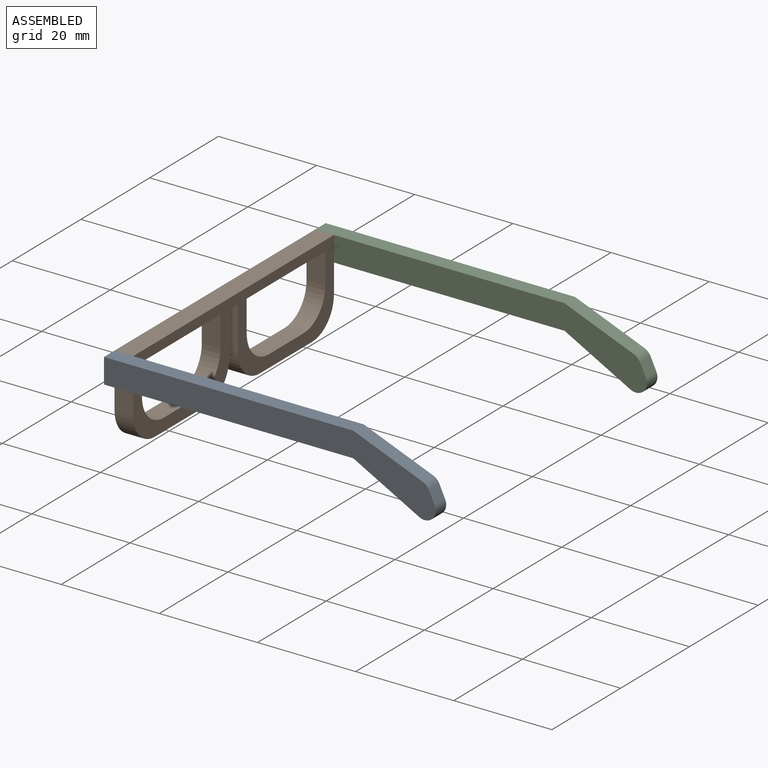
[diagram: assembled view]
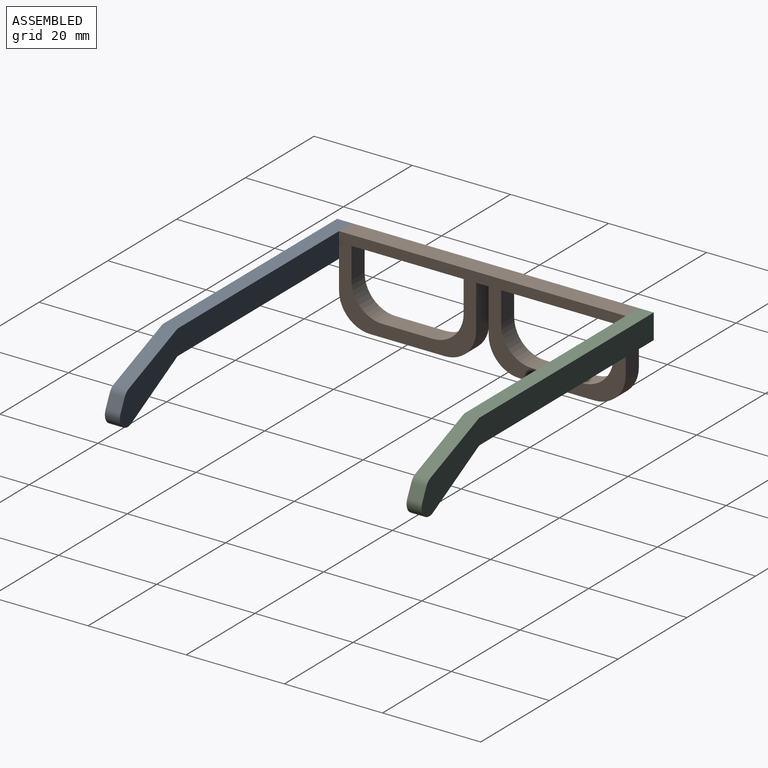
[diagram: assembled view, second angle]
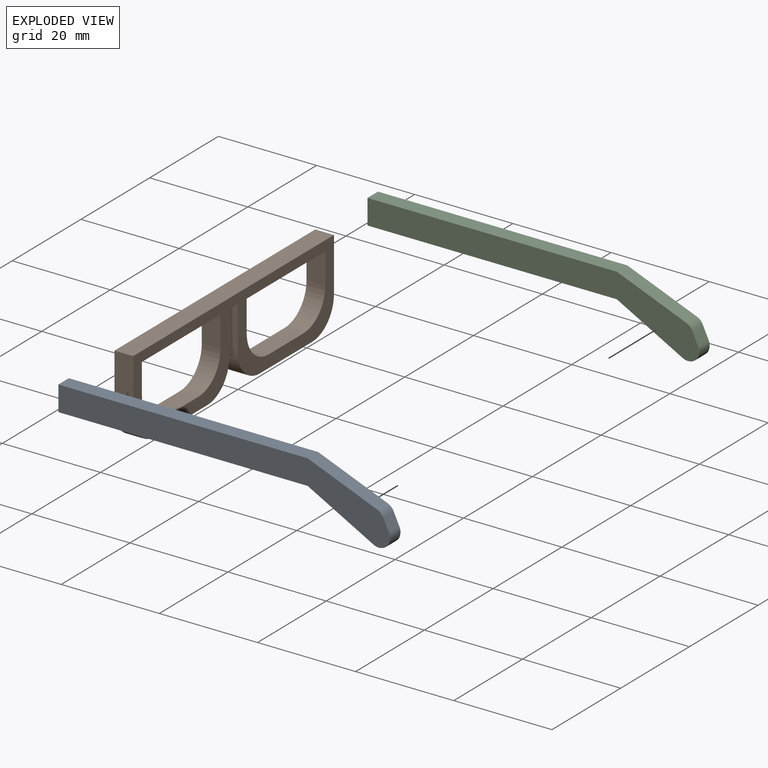
[diagram: exploded view]
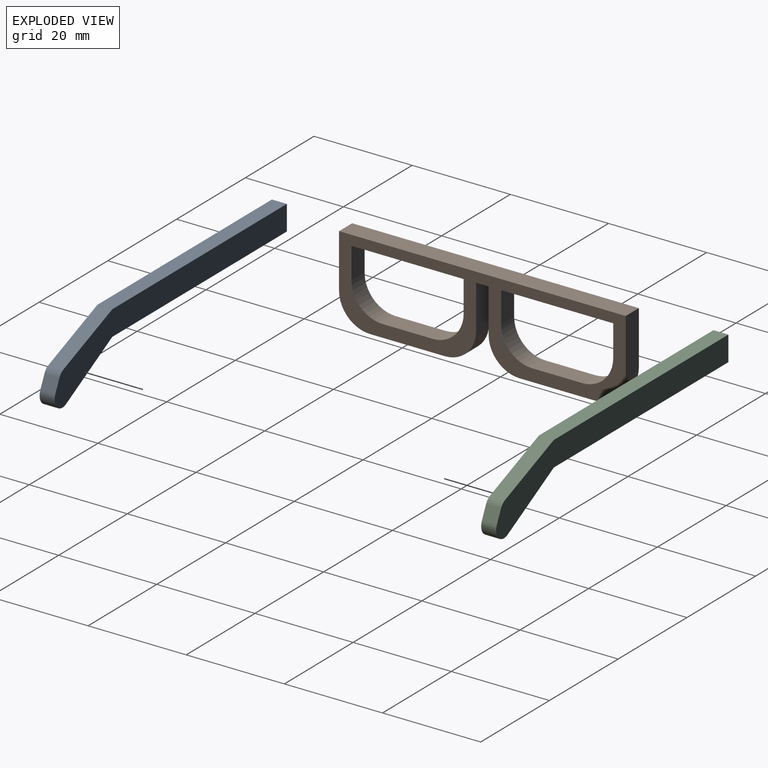
[diagram: exploded view, second angle]
ASSEMBLY  parts=3 mates=2
PART A: 10 faces, bbox 67.6x3x12.6 mm
  f0: plane 5.08x3.05mm, normal (-1,0,0), area 15.5mm2, adj f1,f7,f8,f9
  f1: plane 50.8x3.05mm, normal (0,0,-1), area 154.8mm2, adj f0,f2,f8,f9
  f2: plane 13.42x7.22mm, normal (-0.47,0,-0.88), area 46.5mm2, adj f1,f3,f8,f9
  f3: cylinder r=2.29mm len=3.37mm, axis (0,1,0), area 17.4mm2, adj f2,f4,f8,f9
  f4: plane 3.05x2.53mm, normal (0.91,0,0.42), area 8.5mm2, adj f3,f5,f8,f9
  f5: cylinder r=2.29mm len=3.05mm, axis (0,1,0), area 5.3mm2, adj f4,f6,f8,f9
  f6: plane 14.16x5.63mm, normal (0.37,0,0.93), area 46.5mm2, adj f5,f7,f8,f9
  f7: plane 50.8x3.05mm, normal (0,0,1), area 154.8mm2, adj f0,f6,f8,f9
  f8: plane 67.59x12.58mm, normal (0,-1,0), area 356.9mm2, adj f0,f1,f2,f3,f4,f5,f6,f7
  f9: plane 67.59x12.58mm, normal (0,1,0), area 356.9mm2, adj f0,f1,f2,f3,f4,f5,f6,f7
PART B: 26 faces, bbox 58.4x3.8x17.3 mm
  f0: plane 6.35x3.81mm, normal (1,0,0), area 24.2mm2, adj f1,f23,f24,f25
  f1: plane 22.86x3.81mm, normal (0,0,-1), area 87.1mm2, adj f0,f2,f24,f25
  f2: plane 6.35x3.81mm, normal (-1,0,0), area 24.2mm2, adj f1,f3,f24,f25
  f3: cylinder r=6.35mm len=6.35mm, axis (0,1,0), area 38mm2, adj f2,f4,f24,f25
  f4: plane 10.16x3.81mm, normal (0,0,1), area 38.7mm2, adj f3,f23,f24,f25
  f5: plane 22.86x3.81mm, normal (0,0,-1), area 87.1mm2, adj f6,f21,f24,f25
  f6: plane 6.35x3.81mm, normal (-1,0,0), area 24.2mm2, adj f5,f7,f24,f25
  f7: cylinder r=6.35mm len=6.35mm, axis (0,1,0), area 38mm2, adj f6,f8,f24,f25
  f8: plane 10.16x3.81mm, normal (0,0,1), area 38.7mm2, adj f7,f9,f24,f25
  f9: cylinder r=6.35mm len=6.35mm, axis (0,1,0), area 38mm2, adj f8,f21,f24,f25
  f10: cylinder r=6.35mm len=6.35mm, axis (0,1,0), area 38mm2, adj f11,f22,f24,f25
  f11: plane 10.91x3.81mm, normal (1,0,0), area 41.6mm2, adj f10,f12,f24,f25
  f12: plane 58.42x3.81mm, normal (0,0,1), area 222.6mm2, adj f11,f13,f24,f25
  f13: plane 10.91x3.81mm, normal (-1,0,0), area 41.6mm2, adj f12,f14,f24,f25
  f14: cylinder r=6.35mm len=6.35mm, axis (0,1,0), area 38mm2, adj f13,f15,f24,f25
  f15: plane 15.24x3.81mm, normal (0,0,-1), area 58.1mm2, adj f14,f16,f24,f25
  f16: cylinder r=6.35mm len=6.35mm, axis (0,1,0), area 38mm2, adj f15,f17,f24,f25
  f17: plane 8.88x3.81mm, normal (1,0,0), area 33.8mm2, adj f16,f18,f24,f25
  f18: plane 3.81x2.54mm, normal (0,0,-1), area 9.7mm2, adj f17,f19,f24,f25
  f19: plane 8.88x3.81mm, normal (-1,0,0), area 33.8mm2, adj f18,f20,f24,f25
  f20: cylinder r=6.35mm len=6.35mm, axis (0,1,0), area 38mm2, adj f19,f22,f24,f25
  f21: plane 6.35x3.81mm, normal (1,0,0), area 24.2mm2, adj f5,f9,f24,f25
  f22: plane 15.24x3.81mm, normal (0,0,-1), area 58.1mm2, adj f10,f20,f24,f25
  f23: cylinder r=6.35mm len=6.35mm, axis (0,1,0), area 38mm2, adj f0,f4,f24,f25
  f24: plane 58.42x17.26mm, normal (0,-1,0), area 389mm2, adj f0,f1,f2,f3,f4,f5,f6,f7
  f25: plane 58.42x17.26mm, normal (0,1,0), area 389mm2, adj f0,f1,f2,f3,f4,f5,f6,f7
PART C: same geometry as A
PLACE A t=(32.75,6.38,-25)mm
PLACE B rot(axis=(0,0,1),90deg) t=(-0.77,66.25,-27.53)mm
PLACE C t=(32.75,67.85,-25)mm
MATE fastened B.f13 <-> A.f9  axis (0,-1,0) through (-2.68,7.91,-1.03)mm
MATE fastened B.f11 <-> C.f8  axis (0,1,0) through (-2.68,66.33,-1.03)mm
